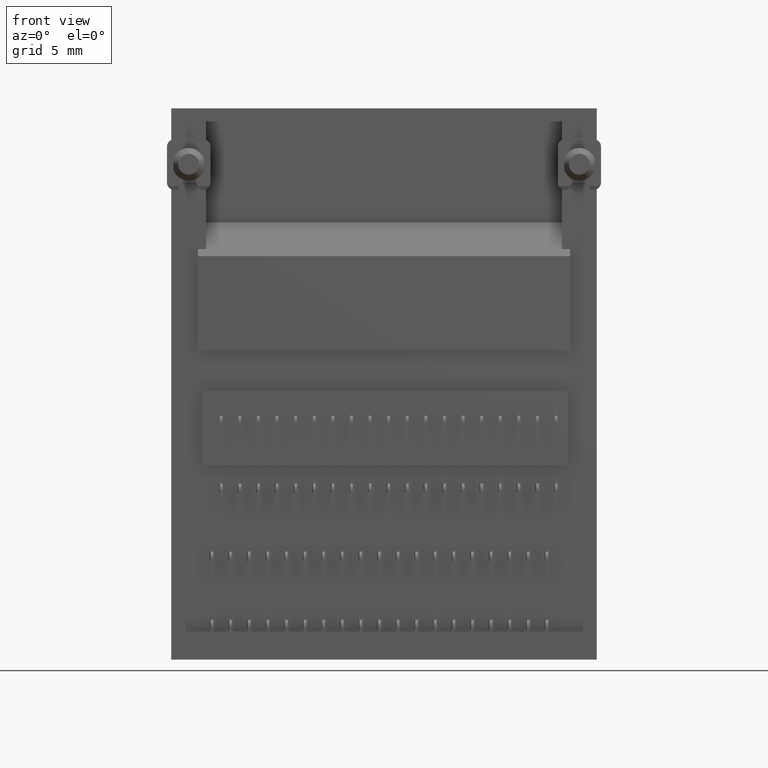
[diagram: clean part render]
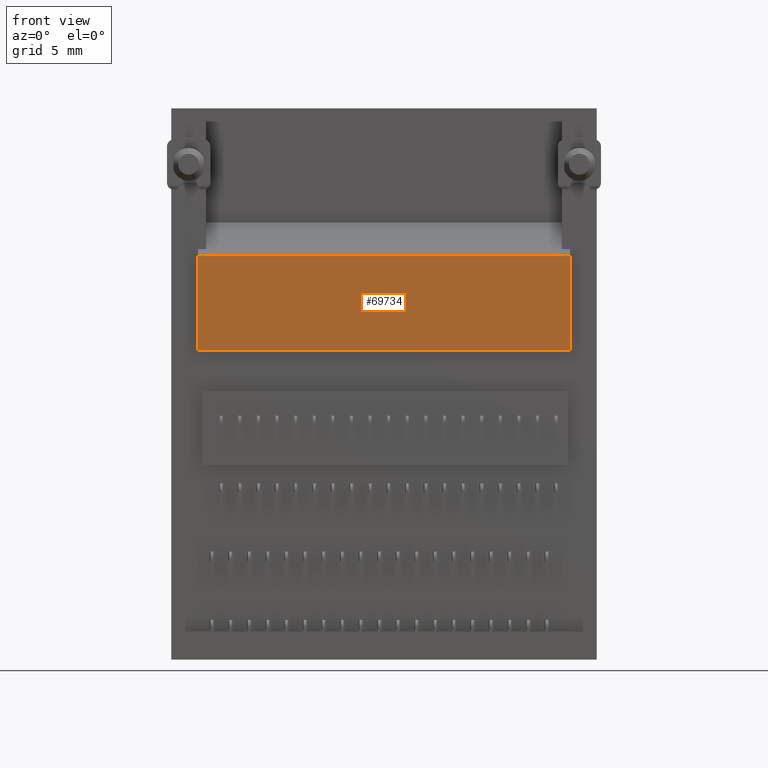
[diagram: same view with one face highlighted and labeled with its STEP entity id]
A machine part, front view. The second image highlights one B-rep face of the part: STEP entity #69734.
In plain terms, the highlighted planar face has unit normal (-0, 1, 0).
Its self-contained STEP definition (entity closure, byte-faithful):
#3794 = DIRECTION ( 'NONE',  ( -1.000000000000000000, 0.0000000000000000000, -1.133806193448893688E-16 ) ) ;
#7370 = CARTESIAN_POINT ( 'NONE',  ( 5.390005311599730398, 0.2000000000000000111, 3.799999999999999822 ) ) ;
#7512 = CARTESIAN_POINT ( 'NONE',  ( -10.60999468840028115, 0.2000000000000000111, -1.399999999999999911 ) ) ;
#9503 = DIRECTION ( 'NONE',  ( -1.000000000000000000, 0.0000000000000000000, 0.0000000000000000000 ) ) ;
#13091 = VERTEX_POINT ( 'NONE', #25102 ) ;
#15781 = ORIENTED_EDGE ( 'NONE', *, *, #55230, .T. ) ;
#16421 = LINE ( 'NONE', #7370, #73815 ) ;
#18754 = VECTOR ( 'NONE', #9503, 1000.000000000000000 ) ;
#25102 = CARTESIAN_POINT ( 'NONE',  ( 5.390005311599730398, 0.2000000000000000111, 2.649999999999999911 ) ) ;
#25591 = DIRECTION ( 'NONE',  ( 1.002730332934569904E-16, 0.0000000000000000000, -1.000000000000000000 ) ) ;
#27146 = DIRECTION ( 'NONE',  ( 1.000000000000000000, 0.0000000000000000000, 0.0000000000000000000 ) ) ;
#27906 = PLANE ( 'NONE',  #47096 ) ;
#31251 = EDGE_LOOP ( 'NONE', ( #74418, #15781, #54913, #64536 ) ) ;
#31954 = EDGE_CURVE ( 'NONE', #67828, #59976, #53952, .T. ) ;
#33667 = VECTOR ( 'NONE', #3794, 1000.000000000000000 ) ;
#39069 = CARTESIAN_POINT ( 'NONE',  ( 5.040005311599729865, 0.2000000000000000111, 3.799999999999999822 ) ) ;
#42461 = CARTESIAN_POINT ( 'NONE',  ( 5.390005311599730398, 0.2000000000000000111, -1.399999999999999911 ) ) ;
#43182 = LINE ( 'NONE', #50574, #72745 ) ;
#45795 = DIRECTION ( 'NONE',  ( -0.0000000000000000000, 1.000000000000000000, 0.0000000000000000000 ) ) ;
#47096 = AXIS2_PLACEMENT_3D ( 'NONE', #39069, #45795, #27146 ) ;
#49396 = LINE ( 'NONE', #68344, #33667 ) ;
#50574 = CARTESIAN_POINT ( 'NONE',  ( -10.60999468840028115, 0.2000000000000000111, 3.799999999999999822 ) ) ;
#53952 = LINE ( 'NONE', #74268, #18754 ) ;
#54913 = ORIENTED_EDGE ( 'NONE', *, *, #62864, .T. ) ;
#55230 = EDGE_CURVE ( 'NONE', #13091, #62070, #49396, .T. ) ;
#55985 = DIRECTION ( 'NONE',  ( 0.0000000000000000000, 0.0000000000000000000, -1.000000000000000000 ) ) ;
#58268 = EDGE_CURVE ( 'NONE', #13091, #67828, #16421, .T. ) ;
#59539 = CARTESIAN_POINT ( 'NONE',  ( -10.60999468840028115, 0.2000000000000000111, 2.649999999999999911 ) ) ;
#59976 = VERTEX_POINT ( 'NONE', #7512 ) ;
#62070 = VERTEX_POINT ( 'NONE', #59539 ) ;
#62864 = EDGE_CURVE ( 'NONE', #62070, #59976, #43182, .T. ) ;
#64536 = ORIENTED_EDGE ( 'NONE', *, *, #31954, .F. ) ;
#67828 = VERTEX_POINT ( 'NONE', #42461 ) ;
#68344 = CARTESIAN_POINT ( 'NONE',  ( 5.040005311599729865, 0.2000000000000000111, 2.649999999999999911 ) ) ;
#69734 = ADVANCED_FACE ( 'NONE', ( #73364 ), #27906, .F. ) ;
#72745 = VECTOR ( 'NONE', #55985, 1000.000000000000000 ) ;
#73364 = FACE_OUTER_BOUND ( 'NONE', #31251, .T. ) ;
#73815 = VECTOR ( 'NONE', #25591, 1000.000000000000000 ) ;
#74268 = CARTESIAN_POINT ( 'NONE',  ( -11.30999468840028044, 0.2000000000000000111, -1.399999999999999911 ) ) ;
#74418 = ORIENTED_EDGE ( 'NONE', *, *, #58268, .F. ) ;